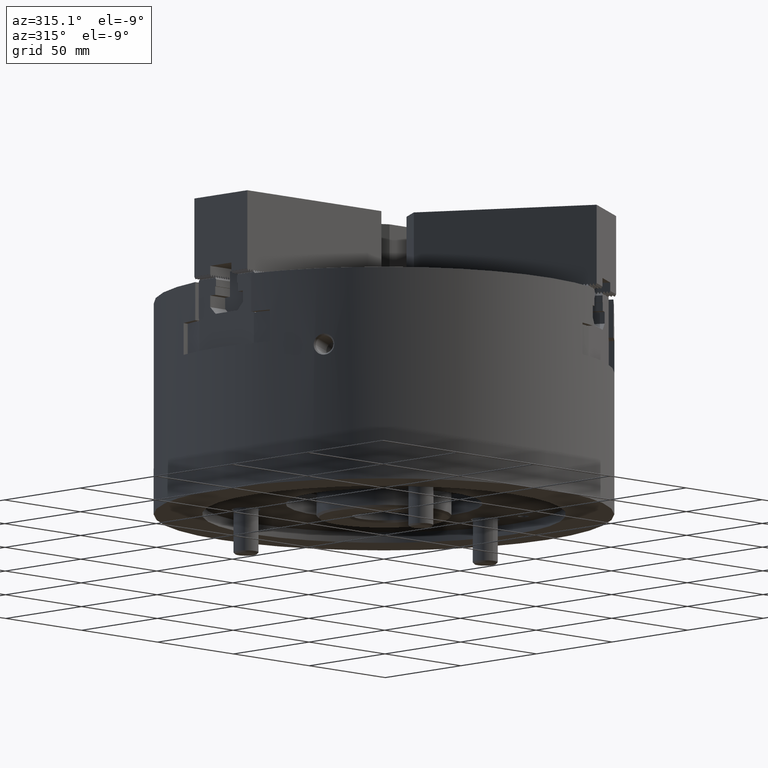
[diagram: clean part render]
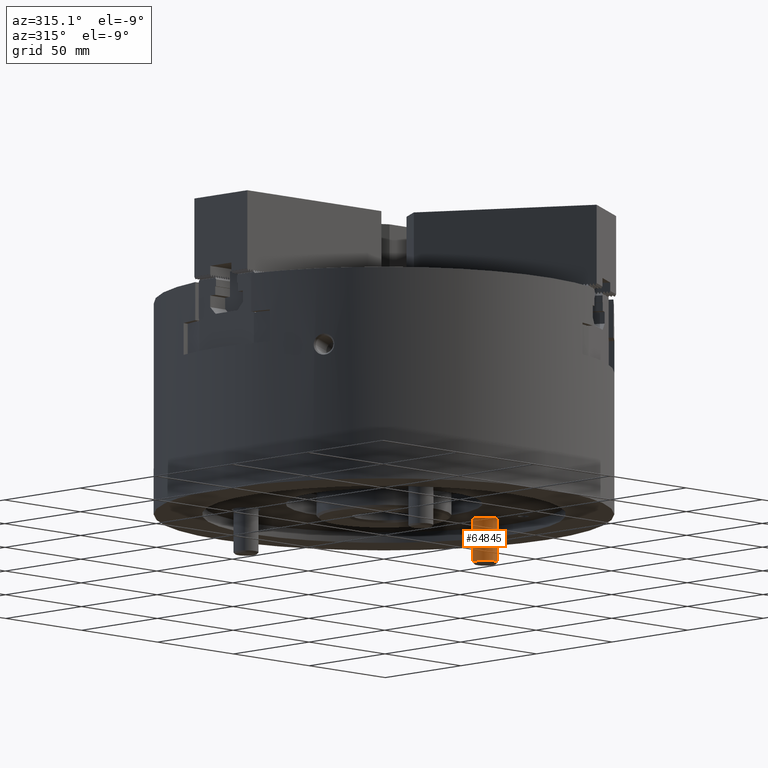
[diagram: same view with one face highlighted and labeled with its STEP entity id]
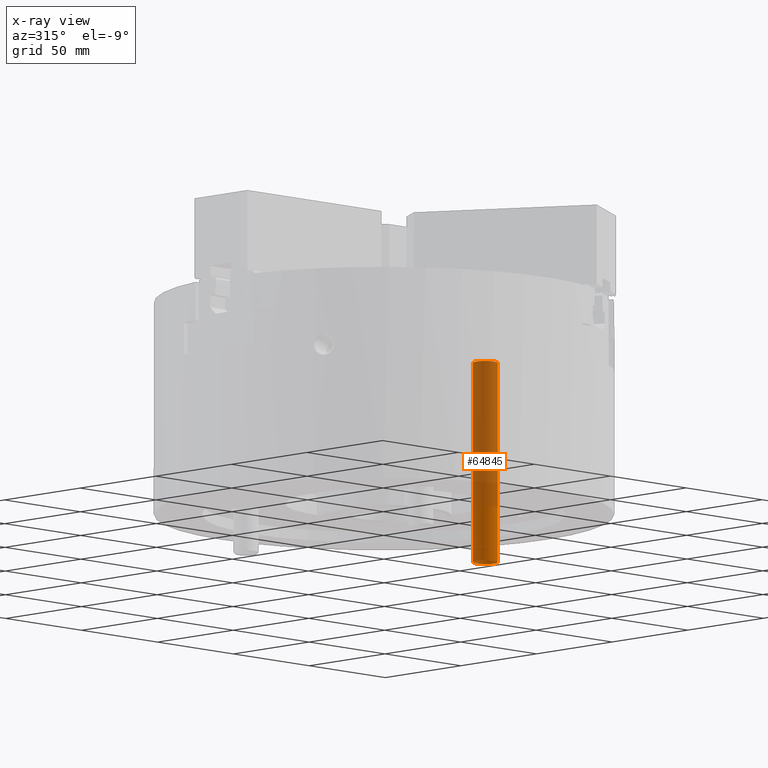
[diagram: x-ray of the same camera — body ghosted, the highlighted face saturated]
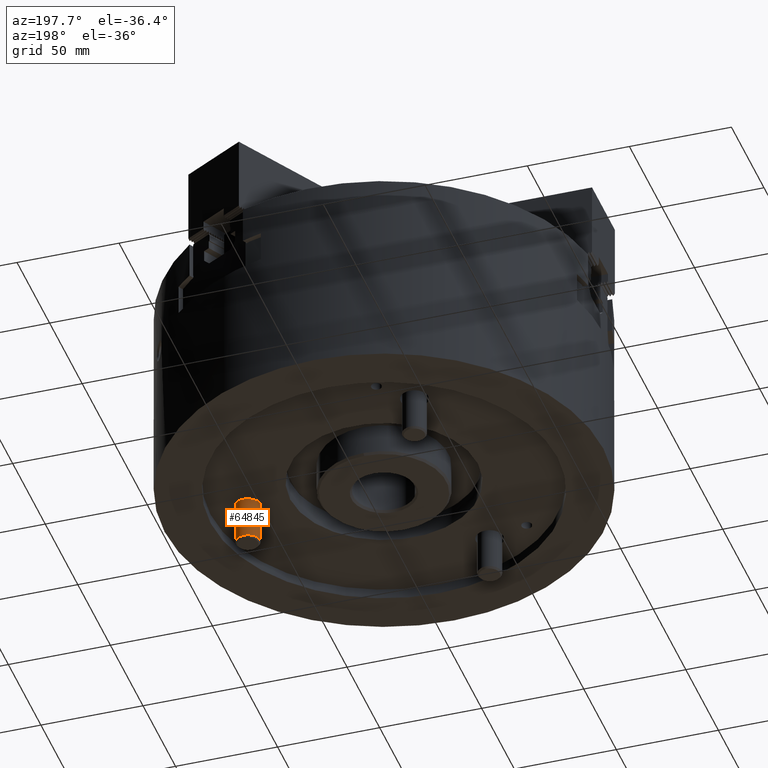
[diagram: same view with one face highlighted and labeled with its STEP entity id]
A machine part, auxiliary view. The second image highlights one B-rep face of the part: STEP entity #64845.
The next image is the same camera in x-ray: the body ghosted, the highlighted face saturated — about 70% of this face is hidden behind the body in this view.
A second angle (auxiliary view) of the same face is appended — the face is thin or edge-on in the first view.
In plain terms, the highlighted cylindrical surface (bore or boss wall) has radius 5.8505 mm, axis along (0, 0, -1).
Its self-contained STEP definition (entity closure, byte-faithful):
#1481=CYLINDRICAL_SURFACE('',#69198,5.8505);
#2446=CIRCLE('',#69197,5.8505);
#2447=CIRCLE('',#69199,5.8505);
#21546=ORIENTED_EDGE('',*,*,#31309,.T.);
#21547=ORIENTED_EDGE('',*,*,#31308,.T.);
#31308=EDGE_CURVE('',#37352,#37352,#2446,.T.);
#31309=EDGE_CURVE('',#37353,#37353,#2447,.T.);
#37352=VERTEX_POINT('',#106984);
#37353=VERTEX_POINT('',#106987);
#56512=EDGE_LOOP('',(#21546));
#56513=EDGE_LOOP('',(#21547));
#59726=FACE_BOUND('',#56512,.T.);
#59727=FACE_BOUND('',#56513,.T.);
#64845=ADVANCED_FACE('',(#59726,#59727),#1481,.T.);
#69197=AXIS2_PLACEMENT_3D('',#106983,#85758,#85759);
#69198=AXIS2_PLACEMENT_3D('',#106985,#85760,#85761);
#69199=AXIS2_PLACEMENT_3D('',#106986,#85762,#85763);
#85758=DIRECTION('',(0.,0.,1.));
#85759=DIRECTION('',(-0.130133838796343,-0.991496436705714,0.));
#85760=DIRECTION('',(0.,0.,-1.));
#85761=DIRECTION('',(-0.130133838796343,-0.991496436705714,0.));
#85762=DIRECTION('',(0.,0.,-1.));
#85763=DIRECTION('',(-0.130133838796343,-0.991496436705714,0.));
#106983=CARTESIAN_POINT('',(66.7,-1.59815678989728E-13,-115.1855));
#106984=CARTESIAN_POINT('',(65.938651976122,-5.80074990294694,-115.1855));
#106985=CARTESIAN_POINT('',(66.7,-1.59815678989728E-13,-21.0000000000001));
#106986=CARTESIAN_POINT('',(66.7,-1.59815678989728E-13,-21.0000000000001));
#106987=CARTESIAN_POINT('',(65.938651976122,-5.80074990294694,-21.0000000000001));